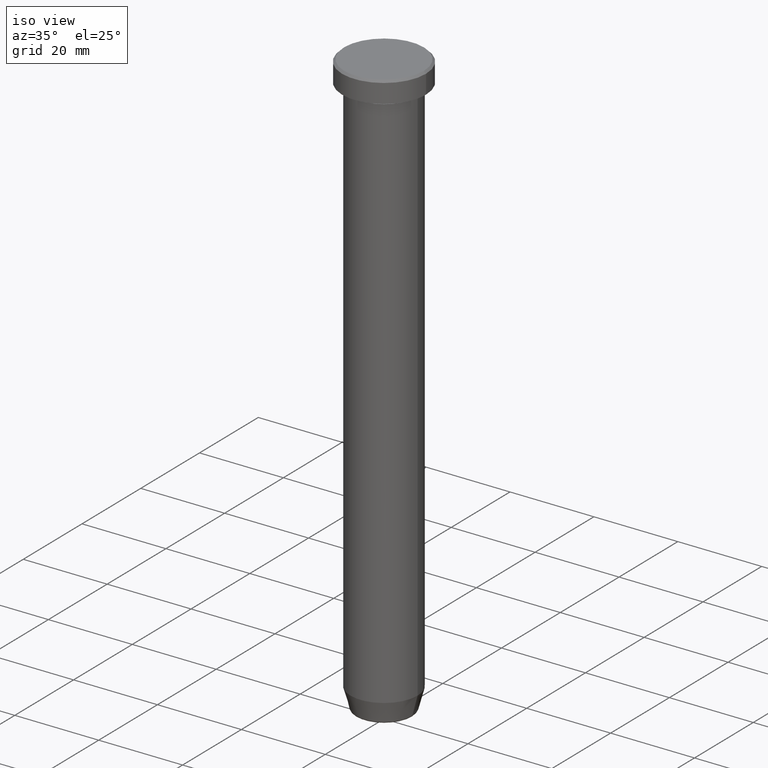
[diagram: clean part render]
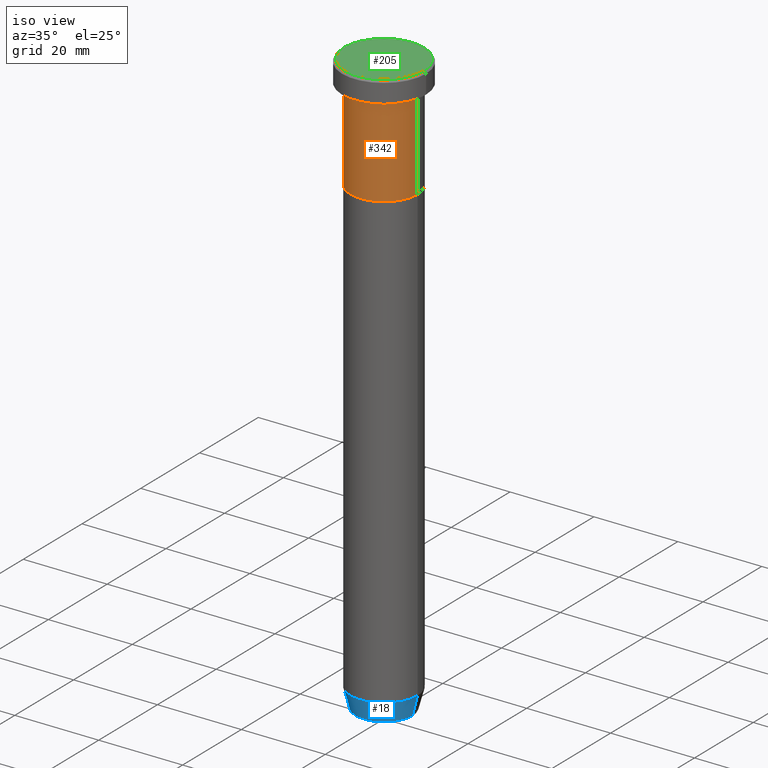
[diagram: same view with three faces highlighted in distinct colors, each labeled with its STEP entity id]
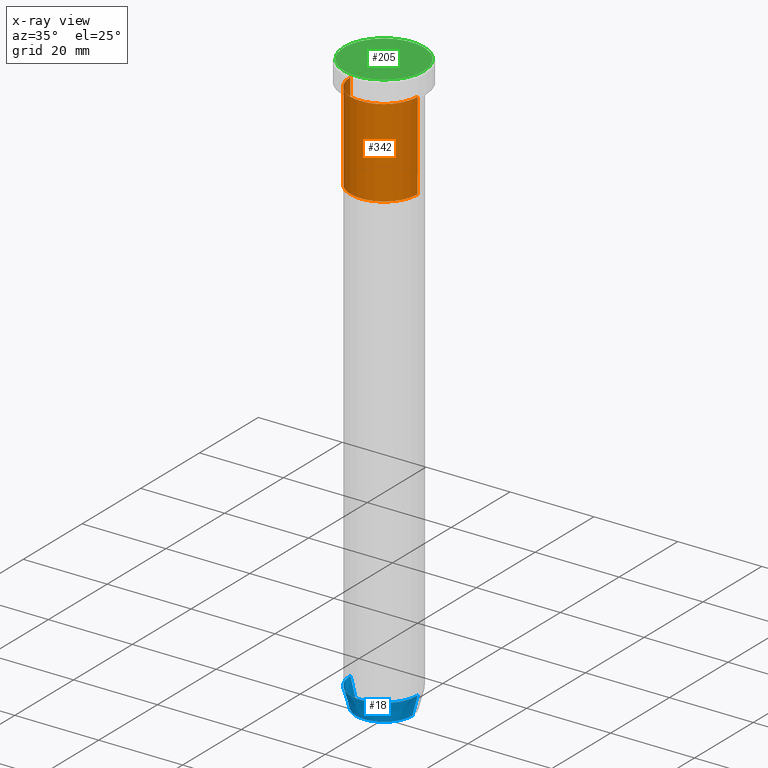
[diagram: x-ray of the same camera — body ghosted, the three highlighted faces saturated]
A machine part, iso view with three faces highlighted in distinct colors.
The next image is the same camera in x-ray (body ghosted, the three faces saturated) — at least one of them is partly hidden behind the body in this view.
Their STEP definitions:

[orange] entity #342 — the highlighted cylindrical surface (partial cylindrical patch) has radius 8 mm, axis along (-0, -0, 1).
#23 = VECTOR ( 'NONE', #129, 1000.000000000000000 ) ;
#26 = DIRECTION ( 'NONE',  ( 1.000000000000000000, 0.000000000000000000, 0.000000000000000000 ) ) ;
#31 = DIRECTION ( 'NONE',  ( -0.000000000000000000, -0.000000000000000000, 1.000000000000000000 ) ) ;
#50 = CARTESIAN_POINT ( 'NONE',  ( 8.000000000000000000, 0.000000000000000000, -27.00000000000000000 ) ) ;
#62 = DIRECTION ( 'NONE',  ( 1.000000000000000000, 0.000000000000000000, 0.000000000000000000 ) ) ;
#69 = CIRCLE ( 'NONE', #74, 8.000000000000000000 ) ;
#74 = AXIS2_PLACEMENT_3D ( 'NONE', #112, #478, #62 ) ;
#91 = ORIENTED_EDGE ( 'NONE', *, *, #529, .T. ) ;
#103 = CARTESIAN_POINT ( 'NONE',  ( 0.000000000000000000, 0.000000000000000000, -6.000000000000000000 ) ) ;
#112 = CARTESIAN_POINT ( 'NONE',  ( 0.000000000000000000, 0.000000000000000000, -27.00000000000000000 ) ) ;
#119 = DIRECTION ( 'NONE',  ( -0.000000000000000000, -0.000000000000000000, 1.000000000000000000 ) ) ;
#123 = CARTESIAN_POINT ( 'NONE',  ( 8.000000000000000000, 0.000000000000000000, -6.000000000000000000 ) ) ;
#129 = DIRECTION ( 'NONE',  ( -0.000000000000000000, -0.000000000000000000, 1.000000000000000000 ) ) ;
#164 = CARTESIAN_POINT ( 'NONE',  ( 0.000000000000000000, 0.000000000000000000, 0.000000000000000000 ) ) ;
#167 = CARTESIAN_POINT ( 'NONE',  ( -8.000000000000000000, 9.797174393178825657E-16, -6.000000000000000000 ) ) ;
#201 = LINE ( 'NONE', #291, #23 ) ;
#207 = ORIENTED_EDGE ( 'NONE', *, *, #528, .F. ) ;
#219 = EDGE_CURVE ( 'NONE', #557, #373, #69, .T. ) ;
#222 = LINE ( 'NONE', #310, #531 ) ;
#251 = VERTEX_POINT ( 'NONE', #123 ) ;
#259 = CIRCLE ( 'NONE', #290, 8.000000000000000000 ) ;
#275 = EDGE_CURVE ( 'NONE', #557, #344, #222, .T. ) ;
#290 = AXIS2_PLACEMENT_3D ( 'NONE', #103, #119, #26 ) ;
#291 = CARTESIAN_POINT ( 'NONE',  ( 8.000000000000000000, 0.000000000000000000, 0.000000000000000000 ) ) ;
#305 = FACE_OUTER_BOUND ( 'NONE', #515, .T. ) ;
#310 = CARTESIAN_POINT ( 'NONE',  ( -8.000000000000000000, 9.797174393178825657E-16, 0.000000000000000000 ) ) ;
#342 = ADVANCED_FACE ( 'NONE', ( #305 ), #578, .T. ) ;
#344 = VERTEX_POINT ( 'NONE', #167 ) ;
#373 = VERTEX_POINT ( 'NONE', #50 ) ;
#419 = AXIS2_PLACEMENT_3D ( 'NONE', #164, #31, #582 ) ;
#426 = ORIENTED_EDGE ( 'NONE', *, *, #275, .F. ) ;
#450 = CARTESIAN_POINT ( 'NONE',  ( -8.000000000000000000, 9.797174393178825657E-16, -27.00000000000000000 ) ) ;
#478 = DIRECTION ( 'NONE',  ( -0.000000000000000000, -0.000000000000000000, 1.000000000000000000 ) ) ;
#498 = DIRECTION ( 'NONE',  ( -0.000000000000000000, -0.000000000000000000, 1.000000000000000000 ) ) ;
#515 = EDGE_LOOP ( 'NONE', ( #426, #518, #91, #207 ) ) ;
#518 = ORIENTED_EDGE ( 'NONE', *, *, #219, .T. ) ;
#528 = EDGE_CURVE ( 'NONE', #344, #251, #259, .T. ) ;
#529 = EDGE_CURVE ( 'NONE', #373, #251, #201, .T. ) ;
#531 = VECTOR ( 'NONE', #498, 1000.000000000000000 ) ;
#557 = VERTEX_POINT ( 'NONE', #450 ) ;
#578 = CYLINDRICAL_SURFACE ( 'NONE', #419, 8.000000000000000000 ) ;
#582 = DIRECTION ( 'NONE',  ( 1.000000000000000000, 0.000000000000000000, 0.000000000000000000 ) ) ;

[blue] entity #18 — the highlighted conical surface has half-angle 15 deg.
#14 = VERTEX_POINT ( 'NONE', #264 ) ;
#17 = DIRECTION ( 'NONE',  ( 1.000000000000000000, 0.000000000000000000, 0.000000000000000000 ) ) ;
#18 = ADVANCED_FACE ( 'NONE', ( #465 ), #99, .T. ) ;
#33 = DIRECTION ( 'NONE',  ( -0.000000000000000000, -0.000000000000000000, 1.000000000000000000 ) ) ;
#39 = CIRCLE ( 'NONE', #269, 8.000000000000000000 ) ;
#46 = CARTESIAN_POINT ( 'NONE',  ( 8.000000000000000000, 0.000000000000000000, -135.0000000000000000 ) ) ;
#57 = VERTEX_POINT ( 'NONE', #520 ) ;
#99 = CONICAL_SURFACE ( 'NONE', #551, 6.660254037844382857, 0.2617993877991499074 ) ;
#118 = VERTEX_POINT ( 'NONE', #241 ) ;
#138 = ORIENTED_EDGE ( 'NONE', *, *, #247, .F. ) ;
#168 = DIRECTION ( 'NONE',  ( 1.000000000000000000, 0.000000000000000000, 0.000000000000000000 ) ) ;
#189 = CIRCLE ( 'NONE', #411, 6.759553456999436882 ) ;
#209 = DIRECTION ( 'NONE',  ( 0.2588190451025211836, 0.000000000000000000, 0.9659258262890680902 ) ) ;
#214 = LINE ( 'NONE', #545, #346 ) ;
#241 = CARTESIAN_POINT ( 'NONE',  ( 6.759553456999436882, 0.000000000000000000, -139.6294095225512706 ) ) ;
#247 = EDGE_CURVE ( 'NONE', #57, #14, #393, .T. ) ;
#264 = CARTESIAN_POINT ( 'NONE',  ( -8.000000000000000000, 9.797174393178825657E-16, -135.0000000000000000 ) ) ;
#269 = AXIS2_PLACEMENT_3D ( 'NONE', #340, #280, #17 ) ;
#280 = DIRECTION ( 'NONE',  ( -0.000000000000000000, -0.000000000000000000, 1.000000000000000000 ) ) ;
#316 = EDGE_CURVE ( 'NONE', #118, #441, #214, .T. ) ;
#319 = ORIENTED_EDGE ( 'NONE', *, *, #316, .T. ) ;
#333 = ORIENTED_EDGE ( 'NONE', *, *, #508, .F. ) ;
#336 = DIRECTION ( 'NONE',  ( -0.2588190451025211836, 3.169619151431770488E-17, 0.9659258262890680902 ) ) ;
#340 = CARTESIAN_POINT ( 'NONE',  ( 0.000000000000000000, 0.000000000000000000, -135.0000000000000000 ) ) ;
#346 = VECTOR ( 'NONE', #209, 1000.000000000000114 ) ;
#380 = DIRECTION ( 'NONE',  ( -0.000000000000000000, -0.000000000000000000, 1.000000000000000000 ) ) ;
#391 = EDGE_LOOP ( 'NONE', ( #138, #527, #319, #333 ) ) ;
#393 = LINE ( 'NONE', #574, #570 ) ;
#411 = AXIS2_PLACEMENT_3D ( 'NONE', #519, #380, #565 ) ;
#418 = CARTESIAN_POINT ( 'NONE',  ( 0.000000000000000000, 0.000000000000000000, -140.0000000000000000 ) ) ;
#431 = EDGE_CURVE ( 'NONE', #57, #118, #189, .T. ) ;
#441 = VERTEX_POINT ( 'NONE', #46 ) ;
#465 = FACE_OUTER_BOUND ( 'NONE', #391, .T. ) ;
#508 = EDGE_CURVE ( 'NONE', #14, #441, #39, .T. ) ;
#519 = CARTESIAN_POINT ( 'NONE',  ( 0.000000000000000000, 0.000000000000000000, -139.6294095225512706 ) ) ;
#520 = CARTESIAN_POINT ( 'NONE',  ( -6.759553456999436882, 9.037619948979306213E-16, -139.6294095225512706 ) ) ;
#527 = ORIENTED_EDGE ( 'NONE', *, *, #431, .T. ) ;
#545 = CARTESIAN_POINT ( 'NONE',  ( 6.660254037844382857, 0.000000000000000000, -140.0000000000000000 ) ) ;
#551 = AXIS2_PLACEMENT_3D ( 'NONE', #418, #33, #168 ) ;
#565 = DIRECTION ( 'NONE',  ( -1.000000000000000000, 0.000000000000000000, 0.000000000000000000 ) ) ;
#570 = VECTOR ( 'NONE', #336, 1000.000000000000114 ) ;
#574 = CARTESIAN_POINT ( 'NONE',  ( -6.660254037844382857, 8.156458788954358790E-16, -140.0000000000000000 ) ) ;

[green] entity #205 — the highlighted planar face has unit normal (0, -0, 1).
#16 = EDGE_CURVE ( 'NONE', #448, #262, #85, .T. ) ;
#40 = DIRECTION ( 'NONE',  ( -0.000000000000000000, -0.000000000000000000, 1.000000000000000000 ) ) ;
#85 = CIRCLE ( 'NONE', #128, 9.500000000000005329 ) ;
#94 = CARTESIAN_POINT ( 'NONE',  ( 0.000000000000000000, 0.000000000000000000, 0.000000000000000000 ) ) ;
#128 = AXIS2_PLACEMENT_3D ( 'NONE', #458, #40, #502 ) ;
#137 = PLANE ( 'NONE',  #335 ) ;
#160 = ORIENTED_EDGE ( 'NONE', *, *, #371, .T. ) ;
#181 = CARTESIAN_POINT ( 'NONE',  ( -9.500000000000005329, 0.000000000000000000, 0.000000000000000000 ) ) ;
#196 = AXIS2_PLACEMENT_3D ( 'NONE', #353, #369, #510 ) ;
#205 = ADVANCED_FACE ( 'NONE', ( #211 ), #137, .T. ) ;
#211 = FACE_OUTER_BOUND ( 'NONE', #271, .T. ) ;
#232 = DIRECTION ( 'NONE',  ( 1.000000000000000000, 0.000000000000000000, 0.000000000000000000 ) ) ;
#240 = CIRCLE ( 'NONE', #196, 9.500000000000005329 ) ;
#262 = VERTEX_POINT ( 'NONE', #292 ) ;
#271 = EDGE_LOOP ( 'NONE', ( #314, #160 ) ) ;
#292 = CARTESIAN_POINT ( 'NONE',  ( 9.500000000000005329, 1.194030629168669864E-15, 0.000000000000000000 ) ) ;
#298 = DIRECTION ( 'NONE',  ( 0.000000000000000000, -0.000000000000000000, 1.000000000000000000 ) ) ;
#314 = ORIENTED_EDGE ( 'NONE', *, *, #16, .T. ) ;
#335 = AXIS2_PLACEMENT_3D ( 'NONE', #94, #298, #232 ) ;
#353 = CARTESIAN_POINT ( 'NONE',  ( 0.000000000000000000, 0.000000000000000000, 0.000000000000000000 ) ) ;
#369 = DIRECTION ( 'NONE',  ( -0.000000000000000000, -0.000000000000000000, 1.000000000000000000 ) ) ;
#371 = EDGE_CURVE ( 'NONE', #262, #448, #240, .T. ) ;
#448 = VERTEX_POINT ( 'NONE', #181 ) ;
#458 = CARTESIAN_POINT ( 'NONE',  ( 0.000000000000000000, 0.000000000000000000, 0.000000000000000000 ) ) ;
#502 = DIRECTION ( 'NONE',  ( 1.000000000000000000, 0.000000000000000000, 0.000000000000000000 ) ) ;
#510 = DIRECTION ( 'NONE',  ( 1.000000000000000000, 0.000000000000000000, 0.000000000000000000 ) ) ;